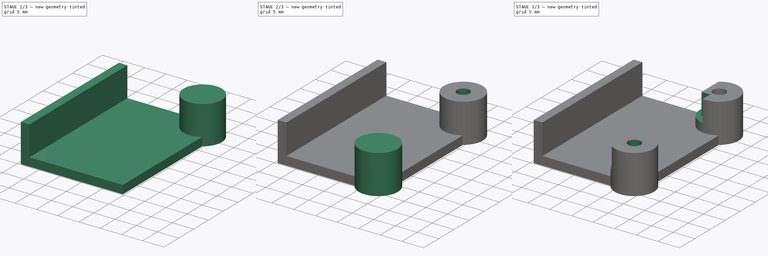
[diagram: build sequence overview — one tinted view per stage of 3, left to right]
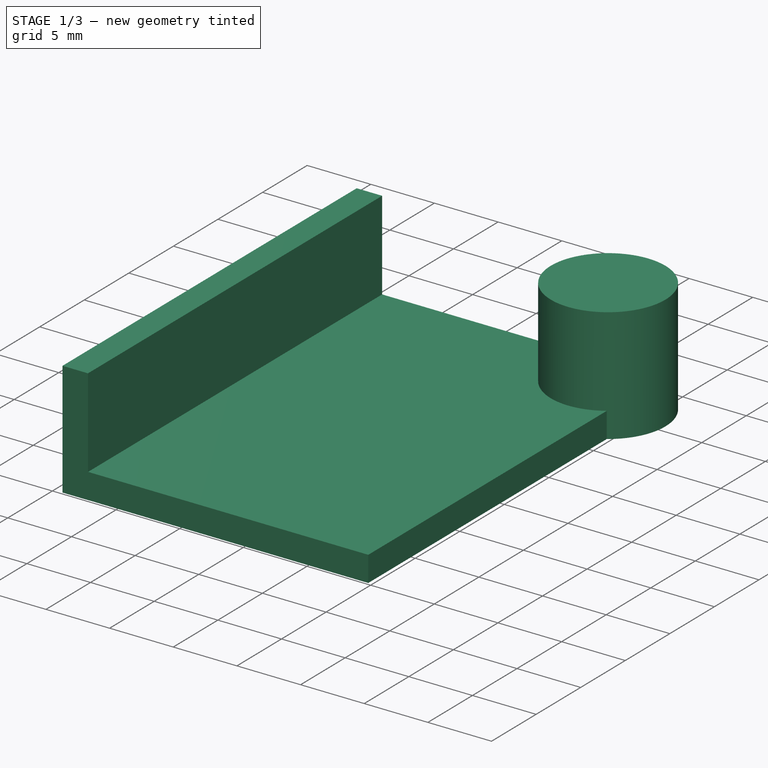
[diagram: stage 1 of 3 — iso view after this stage's code; geometry added in this stage tinted green]
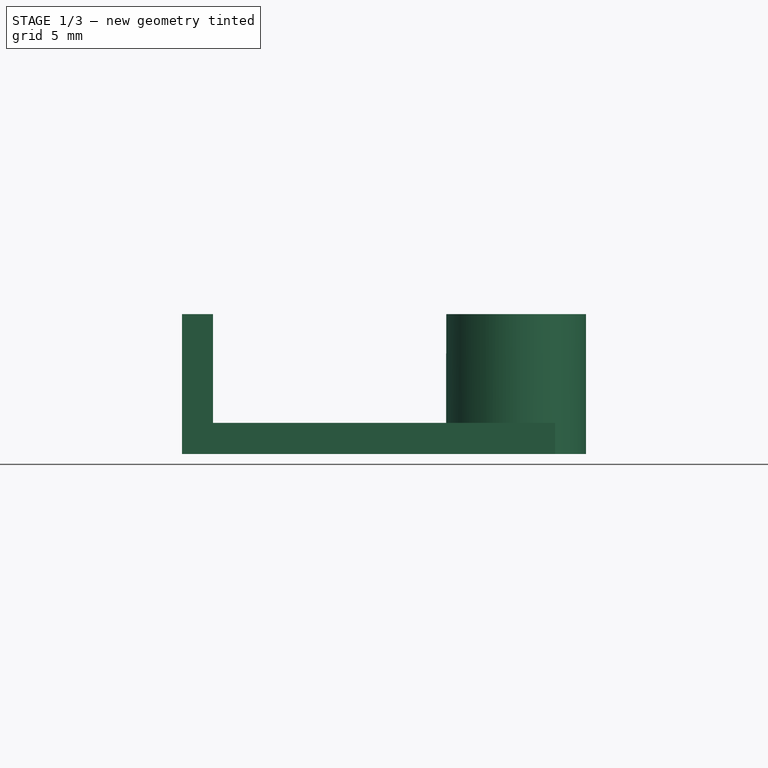
[diagram: stage 1 of 3 — front view after this stage's code; geometry added in this stage tinted green]
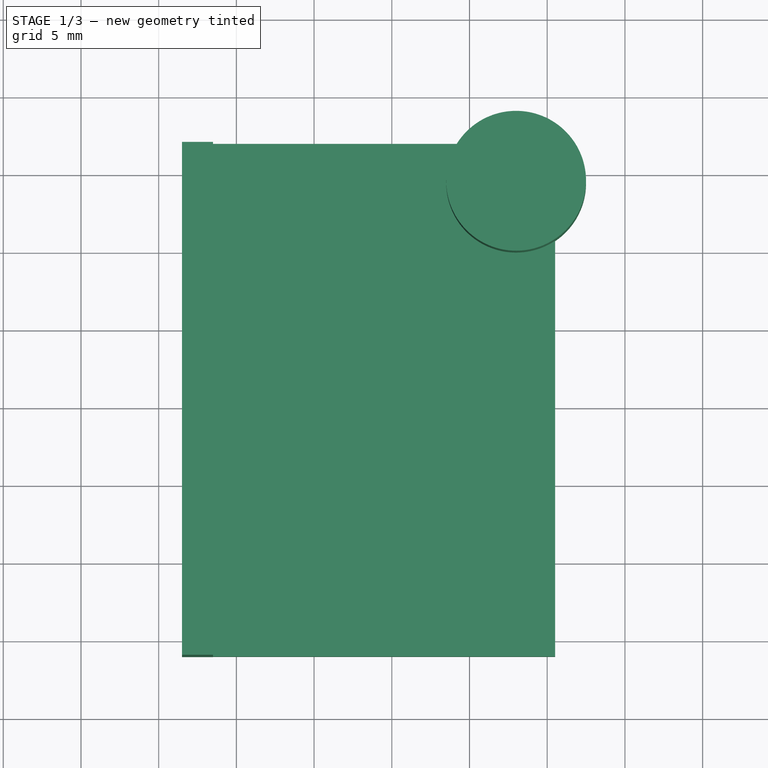
[diagram: stage 1 of 3 — top view after this stage's code; geometry added in this stage tinted green]
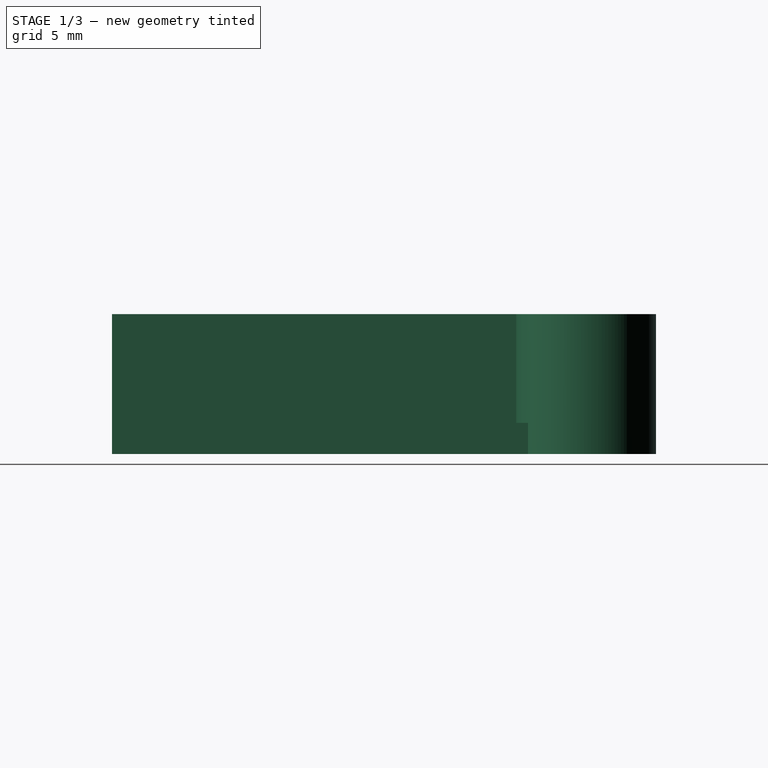
[diagram: stage 1 of 3 — right view after this stage's code; geometry added in this stage tinted green]
FCSTD DOCUMENT  (FreeCAD 1.0R39319 (Git))
Label: MPR121_mount_with_cutouts
License: All rights reserved
LicenseURL: https://en.wikipedia.org/wiki/All_rights_reserved
objects: PartDesign::AdditiveCylinder×2, PartDesign::Hole×2, PartDesign::SubtractiveBox×2, Sketcher::SketchObject×1, PartDesign::Pad×1, PartDesign::AdditiveBox×1, PartDesign::Body×1
note: 27 computed .brp shape members not serialized (recipe doc carries the construction recipe); baked Part::Feature solids carry a one-line shape summary decoded from their .brp

FEATURE [Sketcher::SketchObject] Sketch
  ArcFitTolerance = 1e-06
  AttachmentSupport = -> [XY_Plane]
  FullyConstrained = false
  MakeInternals = false
  MapMode = 5
  sketch-geometry (4):
    g0: LineSegment StartX=-13.501 StartY=-3.0037 StartZ=0 EndX=-13.501 EndY=-35.9914 EndZ=0
    g1: LineSegment StartX=-13.501 StartY=-35.9914 StartZ=0 EndX=10.5104 EndY=-35.9914 EndZ=0
    g2: LineSegment StartX=10.5104 StartY=-35.9914 StartZ=0 EndX=10.5104 EndY=-3.0037 EndZ=0
    g3: LineSegment StartX=10.5104 StartY=-3.0037 StartZ=0 EndX=-13.501 EndY=-3.0037 EndZ=0
  constraints (8):
    c: Coincident(g0,g1)
    c: Coincident(g1,g2)
    c: Coincident(g2,g3)
    c: Coincident(g3,g0)
    c: Vertical(g0)
    c: Vertical(g2)
    c: Horizontal(g1)
    c: Horizontal(g3)
FEATURE [PartDesign::Pad] Pad
  Direction = (0,0,1)
  Length = 2
  Length2 = 10
  Profile = -> Sketch
  ReferenceAxis = -> Sketch [N_Axis]
  Refine = true
  Suppressed = false
  Type = 0
FEATURE [PartDesign::AdditiveBox] Box
  AttacherType = Attacher::AttachEngine3D
  AttachmentOffset = pos=(3,0,-2) rot=(0,0,1;0rad)
  AttachmentSupport = -> [Pad]
  BaseFeature = -> Pad
  Height = 2
  Length = 33
  MapMode = 5
  Placement = pos=(-11.501,-3,0) rot=(0.57735,-0.57735,-0.57735;2.0944rad)
  Refine = true
  Suppressed = false
  Width = 9
FEATURE [PartDesign::AdditiveCylinder] Cylinder
  Angle = 360
  AttacherType = Attacher::AttachEngine3D
  AttachmentOffset = pos=(-2.5,-19.5,-2) rot=(0,0,1;0rad)
  AttachmentSupport = -> [Box]
  BaseFeature = -> Box
  FirstAngle = 0
  Height = 9
  MapMode = 5
  Placement = pos=(7.99895,-5.5,6.2e-15) rot=(0,0,1;1.5708rad)
  Radius = 4.5
  Refine = true
  SecondAngle = 0
  Suppressed = false
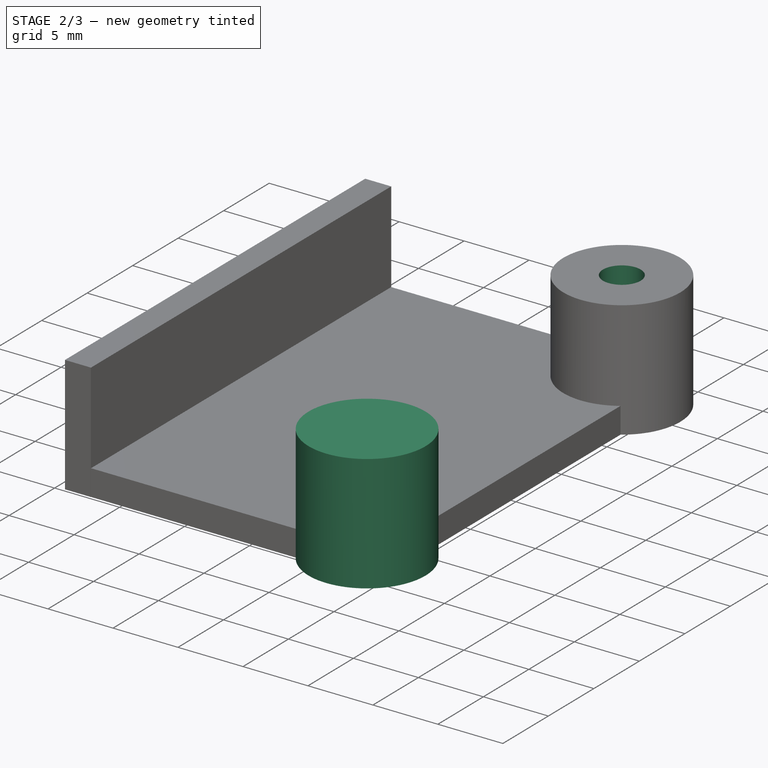
[diagram: stage 2 of 3 — iso view after this stage's code; geometry added in this stage tinted green]
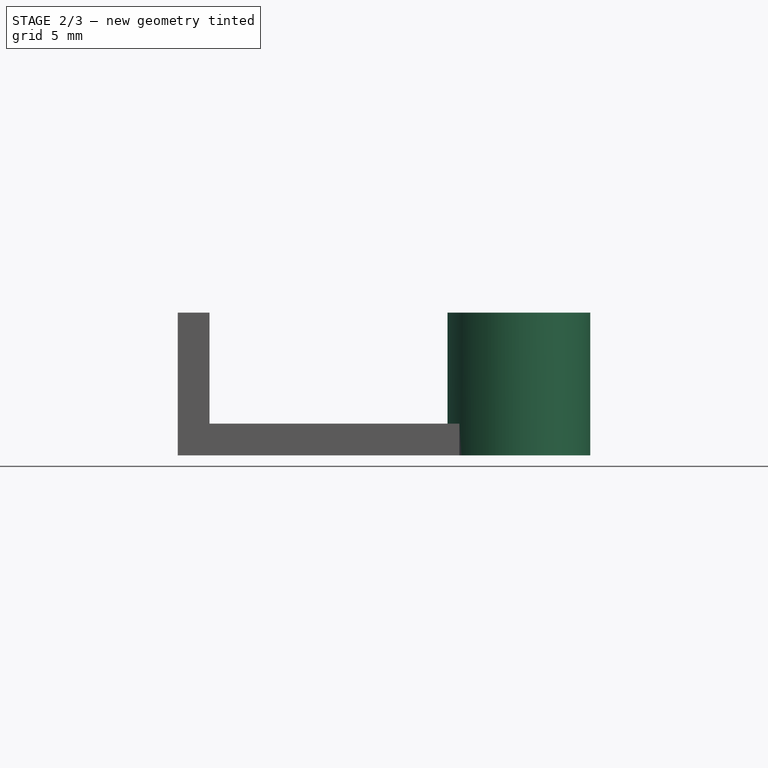
[diagram: stage 2 of 3 — front view after this stage's code; geometry added in this stage tinted green]
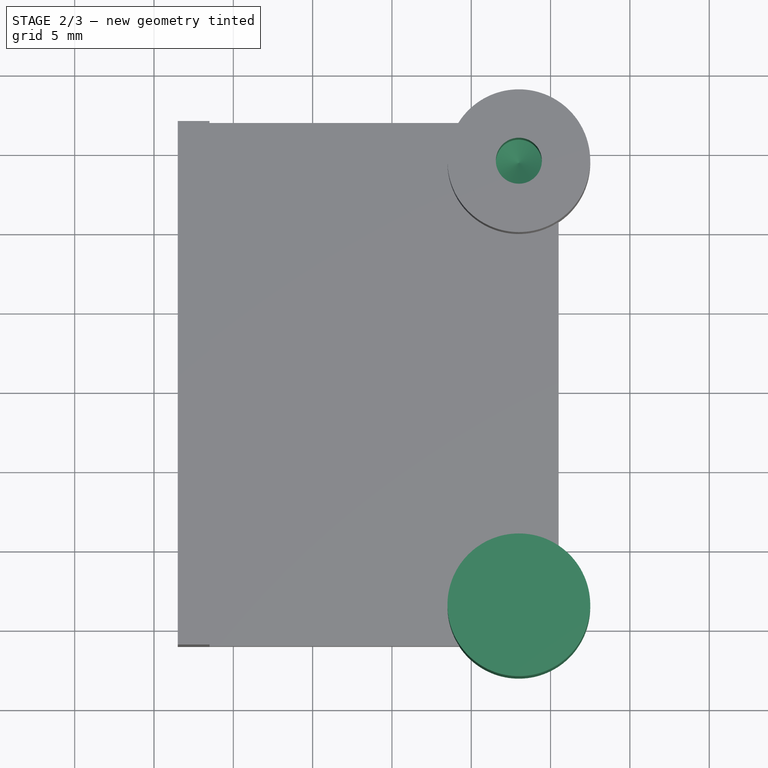
[diagram: stage 2 of 3 — top view after this stage's code; geometry added in this stage tinted green]
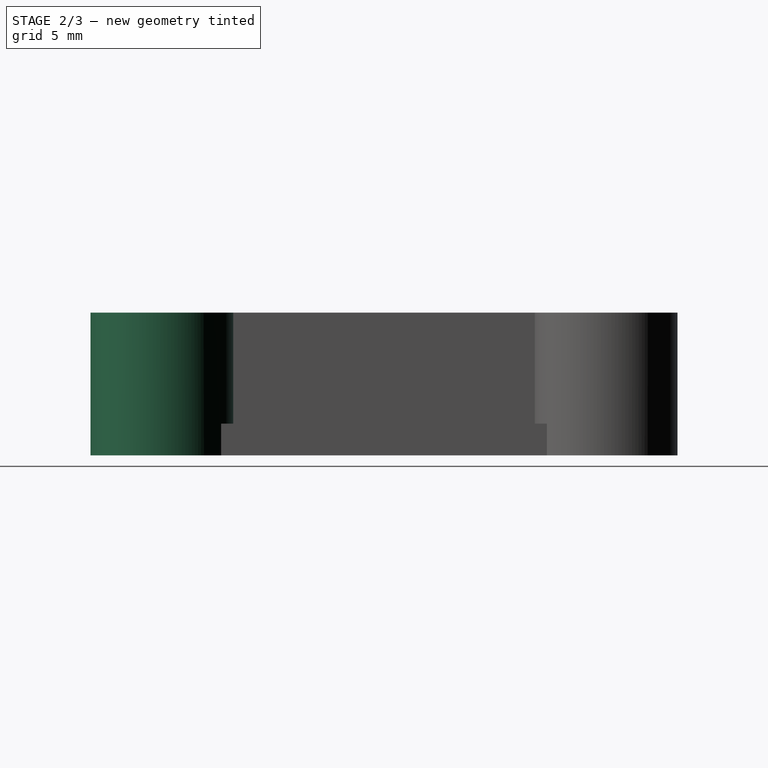
[diagram: stage 2 of 3 — right view after this stage's code; geometry added in this stage tinted green]
FEATURE [PartDesign::AdditiveCylinder] Cylinder001
  Angle = 360
  AttacherType = Attacher::AttachEngine3D
  AttachmentOffset = pos=(-28,0,-2) rot=(0,0,1;0rad)
  AttachmentSupport = -> [Cylinder]
  BaseFeature = -> Cylinder
  FirstAngle = 0
  Height = 9
  MapMode = 5
  Placement = pos=(7.99895,-33.5,1.8e-15) rot=(0,0,1;1.5708rad)
  Radius = 4.5
  Refine = true
  SecondAngle = 0
  Suppressed = false
FEATURE [PartDesign::Hole] Hole
  BaseFeature = -> Cylinder001
  CustomThreadClearance = 0
  Depth = 7
  DepthType = 0
  Diameter = 2.9
  DrillForDepth = false
  DrillPoint = 1
  DrillPointAngle = 118
  HoleCutCountersinkAngle = 90
  HoleCutCustomValues = false
  HoleCutDepth = 0
  HoleCutDiameter = 6.1
  HoleCutType = 0
  ModelThread = false
  Placement = pos=(7.99895,-33.5,1.8e-15) rot=(0,0,1;1.5708rad)
  Profile = -> Cylinder001 [Face12]
  Refine = true
  Suppressed = false
  Tapered = false
  TaperedAngle = 90
  ThreadClass = 0
  ThreadDepth = 7
  ThreadDepthType = 0
  ThreadDirection = 0
  ThreadFit = 0
  ThreadSize = 8
  ThreadType = 1
  Threaded = false
  UseCustomThreadClearance = false
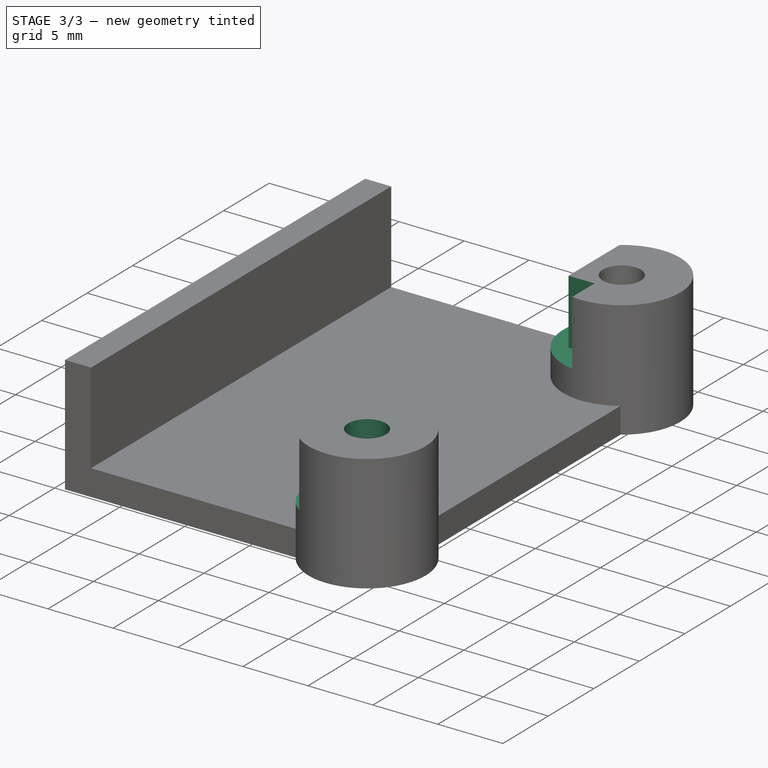
[diagram: stage 3 of 3 — iso view after this stage's code; geometry added in this stage tinted green]
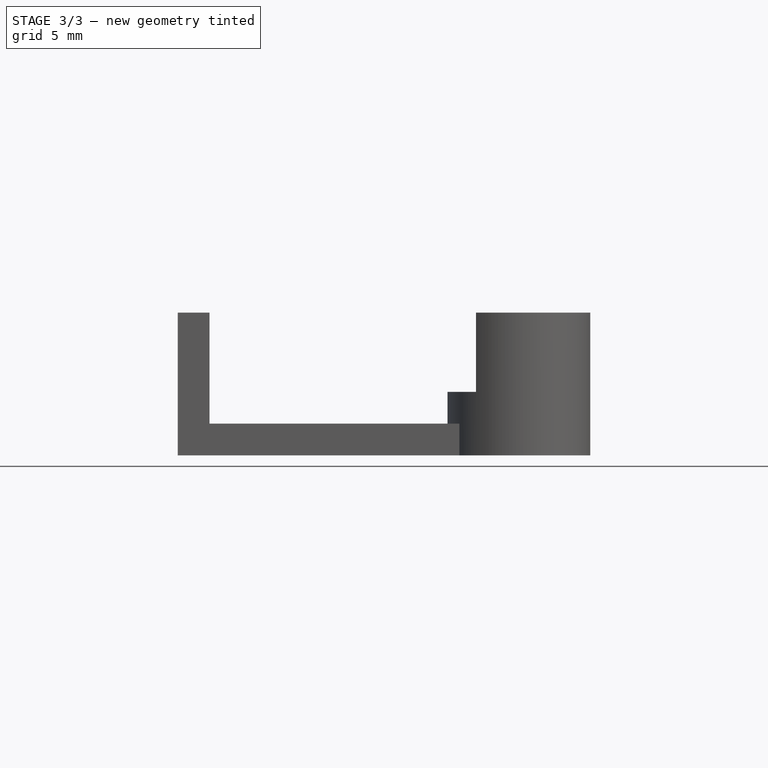
[diagram: stage 3 of 3 — front view after this stage's code; geometry added in this stage tinted green]
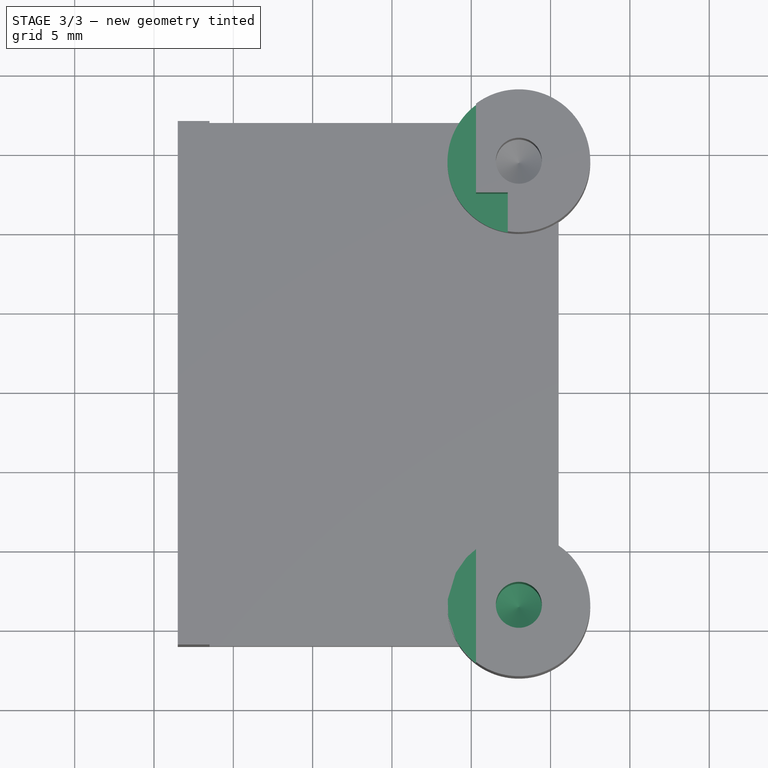
[diagram: stage 3 of 3 — top view after this stage's code; geometry added in this stage tinted green]
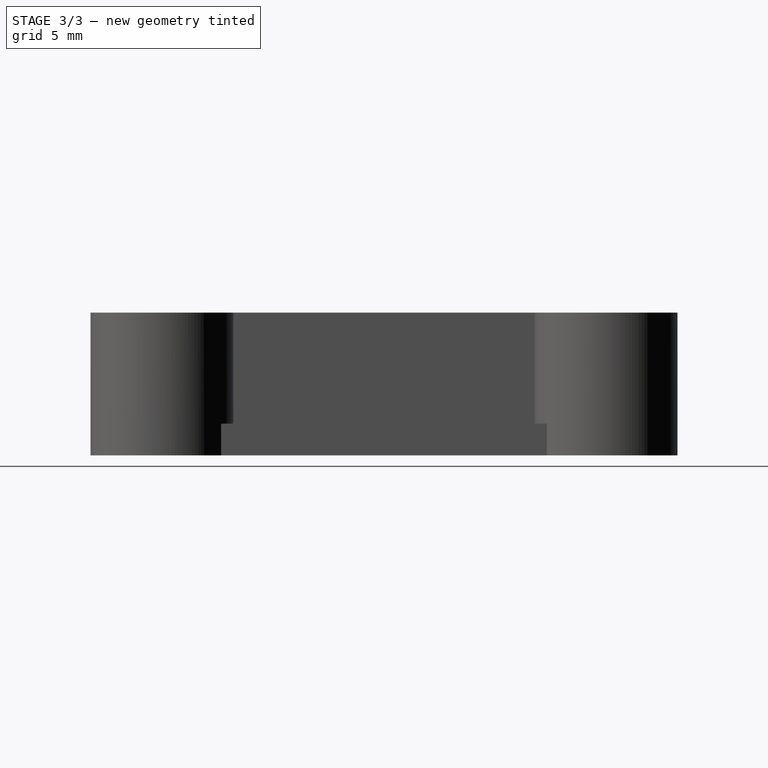
[diagram: stage 3 of 3 — right view after this stage's code; geometry added in this stage tinted green]
FEATURE [PartDesign::Hole] Hole001
  BaseFeature = -> Hole
  CustomThreadClearance = 0
  Depth = 7
  DepthType = 0
  Diameter = 2.9
  DrillForDepth = false
  DrillPoint = 1
  DrillPointAngle = 118
  HoleCutCountersinkAngle = 90
  HoleCutCustomValues = false
  HoleCutDepth = 0
  HoleCutDiameter = 6.1
  HoleCutType = 0
  ModelThread = false
  Placement = pos=(7.99895,-33.5,1.8e-15) rot=(0,0,1;1.5708rad)
  Profile = -> Hole [Face14]
  Refine = true
  Suppressed = false
  Tapered = false
  TaperedAngle = 90
  ThreadClass = 0
  ThreadDepth = 7
  ThreadDepthType = 0
  ThreadDirection = 0
  ThreadFit = 0
  ThreadSize = 8
  ThreadType = 1
  Threaded = false
  UseCustomThreadClearance = false
FEATURE [PartDesign::SubtractiveBox] Box001
  AttacherType = Attacher::AttachEngine3D
  AttachmentOffset = pos=(-7,2.7,2) rot=(0,0,1;0rad)
  AttachmentSupport = -> [Hole001]
  BaseFeature = -> Hole001
  Height = 5
  Length = 40
  MapMode = 5
  Placement = pos=(5.29895,-40.5,4) rot=(0,0,1;1.5708rad)
  Refine = true
  Suppressed = false
  Width = 1.8
FEATURE [PartDesign::SubtractiveBox] Box002
  AttacherType = Attacher::AttachEngine3D
  AttachmentOffset = pos=(30,-2,2) rot=(0,0,1;0rad)
  AttachmentSupport = -> [Box001]
  BaseFeature = -> Box001
  Height = 5
  Length = 3
  MapMode = 5
  Placement = pos=(7.29895,-10.5,4) rot=(0,0,1;1.5708rad)
  Refine = true
  Suppressed = false
  Width = 2
FEATURE [PartDesign::Body] Body
  AllowCompound = false
  Group = -> [Sketch,Pad,Box,Cylinder,Cylinder001,Hole,Hole001,Box001,Box002]
  Origin = -> Origin
  Tip = -> Box002
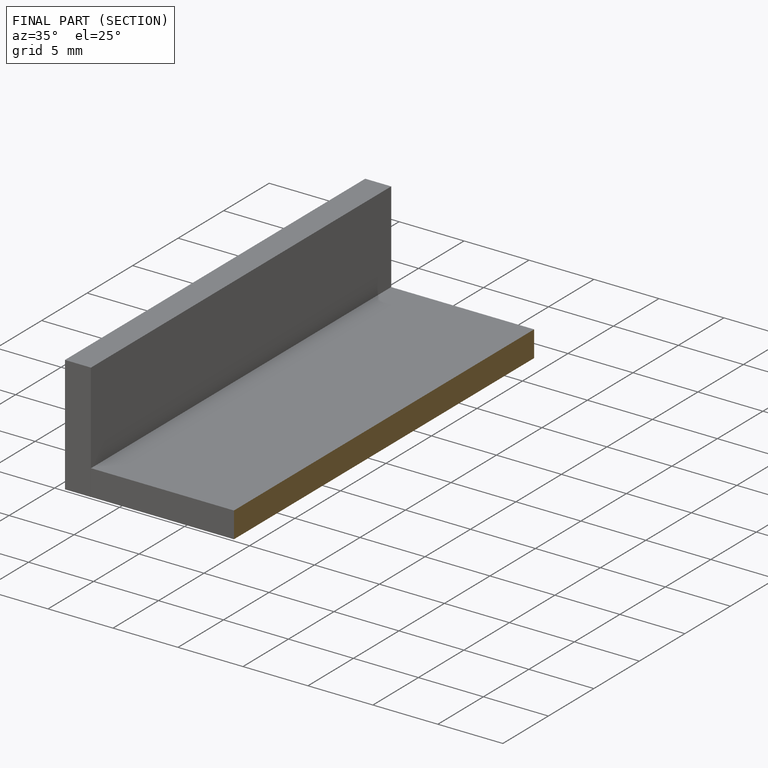
[diagram: finished part — half-section view (interior)]
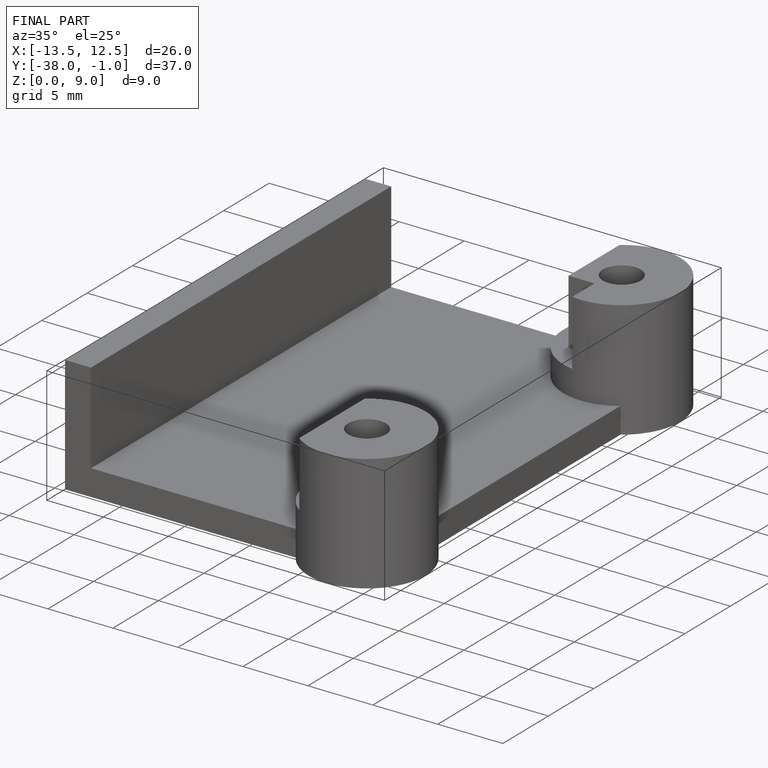
[diagram: finished part — iso view with bounding-box wireframe]
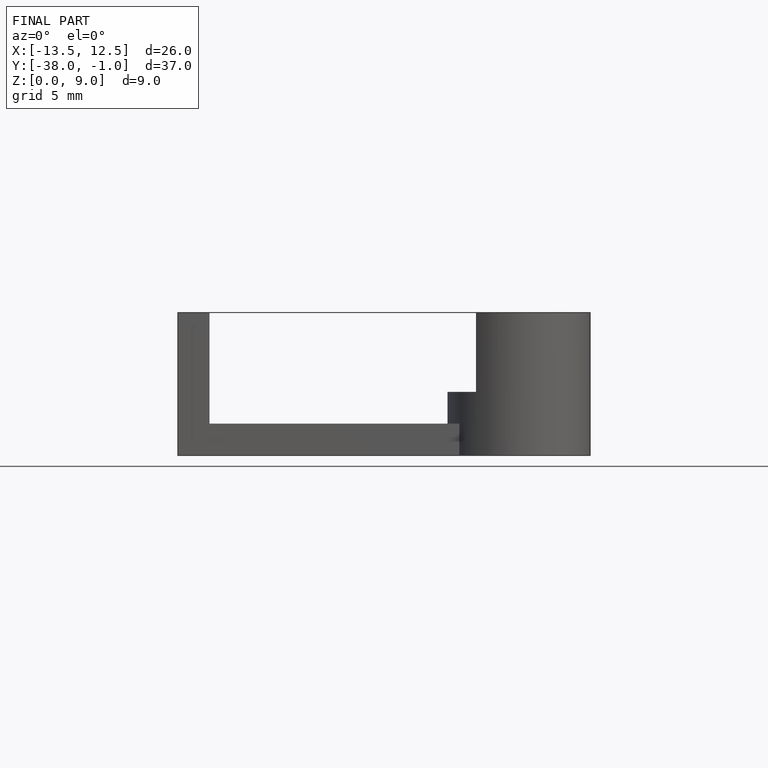
[diagram: finished part — front view with bounding-box wireframe]
